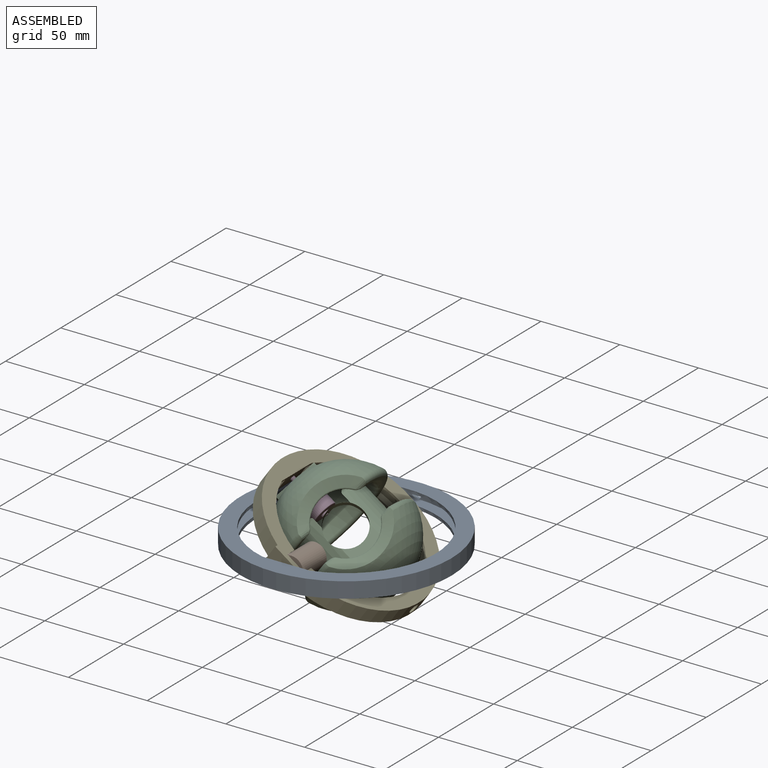
[diagram: assembled view]
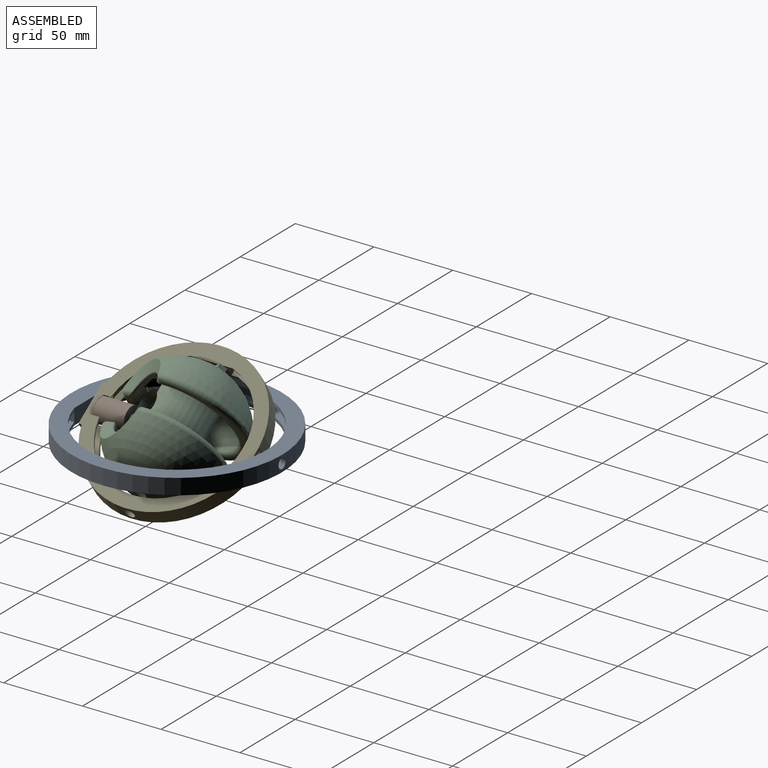
[diagram: assembled view, second angle]
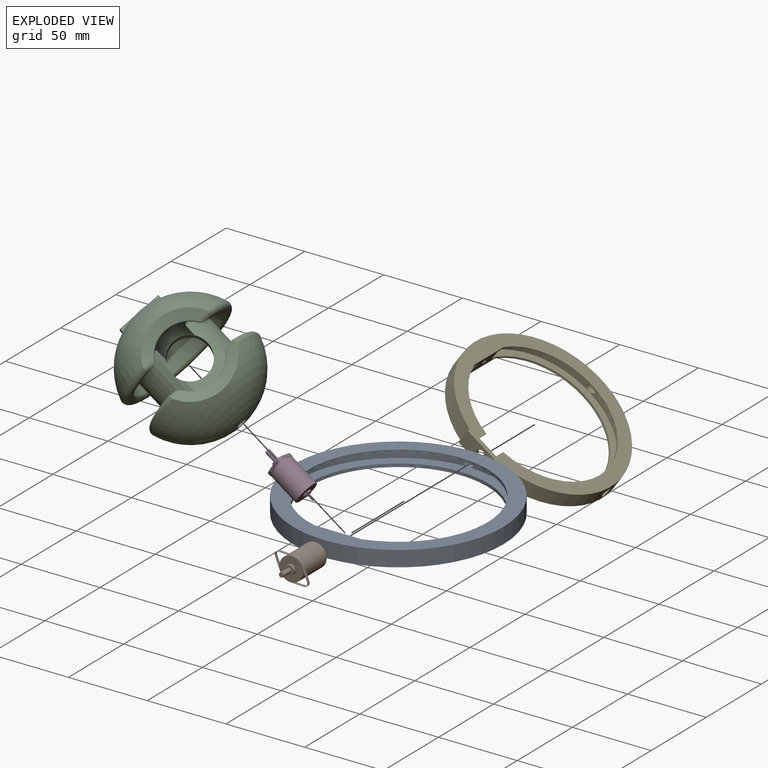
[diagram: exploded view]
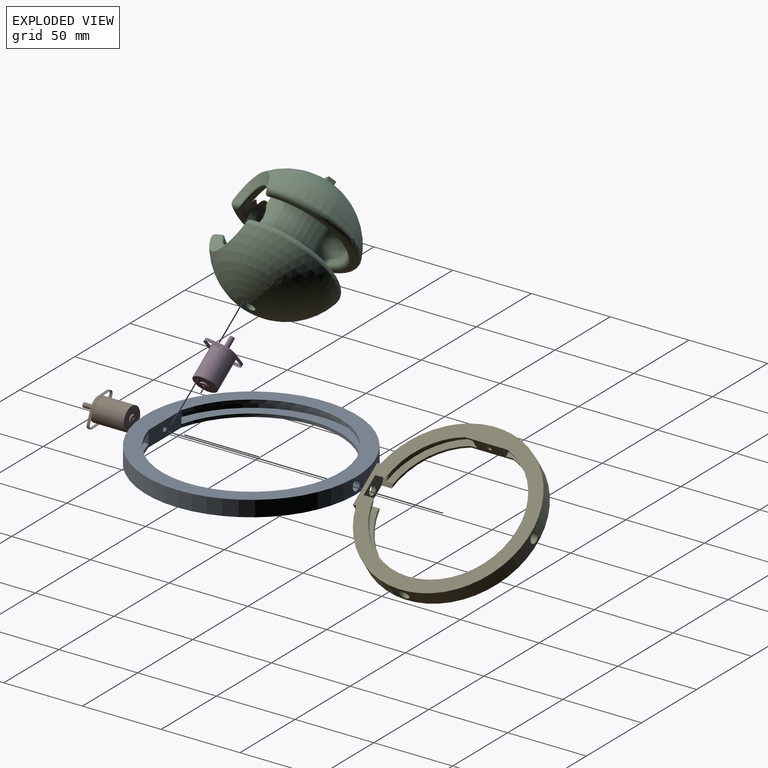
[diagram: exploded view, second angle]
ASSEMBLY  parts=5 mates=4
PART A: 18 faces, bbox 133.6x133.6x10 mm
  f0: plane 29.8x10mm, normal (0,1,0), area 290.1mm2, adj f4,f6,f8,f9,f13,f14,f15,f16
  f1: cylinder r=63.8mm len=125.84mm, axis (0,0,1), area 1096.9mm2, adj f2,f3,f5,f13
  f2: plane 125.84x62.77mm, normal (0,0,1), area 1213.5mm2, adj f1,f4,f5,f13
  f3: plane 125.84x62.77mm, normal (0,0,-1), area 1213.5mm2, adj f1,f5,f6,f13
  f4: cylinder r=56.8mm len=113.61mm, axis (0,0,-1), area 653.3mm2, adj f0,f2,f5,f9,f11
  f5: cylinder r=3.17mm len=10.01mm, axis (0,-1,0), area 89.6mm2, adj f1,f2,f3,f4,f6,f7,f10,f11
  f6: cylinder r=56.8mm len=113.61mm, axis (0,0,-1), area 653.3mm2, adj f0,f3,f5,f8,f12
  f7: cylinder r=66.8mm len=133.61mm, axis (0,0,-1), area 4165.7mm2, adj f5,f8,f9
  f8: plane 133.61x133.61mm, normal (0,0,1), area 3922.9mm2, adj f0,f6,f7
  f9: plane 133.61x133.61mm, normal (0,0,-1), area 3922.9mm2, adj f0,f4,f7
  f10: cylinder r=63.8mm len=125.84mm, axis (0,0,1), area 1096.9mm2, adj f5,f11,f12,f14
  f11: plane 125.84x62.77mm, normal (0,0,1), area 1213.5mm2, adj f4,f5,f10,f14
  f12: plane 125.84x62.77mm, normal (0,0,-1), area 1213.5mm2, adj f5,f6,f10,f14
  f13: plane 7.22x6mm, normal (1,0,0), area 43.3mm2, adj f0,f1,f2,f3
  f14: plane 7.22x6mm, normal (-1,0,0), area 43.3mm2, adj f0,f10,f11,f12
  f15: plane 4.22x2.27mm, normal (0,0,-1), area 9.6mm2, adj f0,f16,f17
  f16: cylinder r=1.65mm len=4.22mm, axis (0,-1,0), area 33.2mm2, adj f0,f15,f17
  f17: plane 3.3x2.85mm, normal (0,1,0), area 7.9mm2, adj f15,f16
PART B: 26 faces, bbox 24.6x31.9x15.4 mm
  f0: cylinder r=0.96mm len=1.92mm, axis (0,-1,0), area 2.7mm2, adj f1,f10
  f1: plane 5.4x5.4mm, normal (0,1,0), area 20mm2, adj f0,f2
  f2: cylinder r=2.7mm len=5.4mm, axis (0,-1,0), area 17.9mm2, adj f1,f3
  f3: plane 15x15mm, normal (0,1,0), area 153.8mm2, adj f2,f4
  f4: cylinder r=7.5mm len=21.44mm, axis (0,-1,0), area 979.6mm2, adj f3,f5,f11,f13,f14,f24,f25
  f5: plane 24.6x15.4mm, normal (0,-1,0), area 161.3mm2, adj f4,f6,f11,f12,f13,f14,f15,f16
  f6: cylinder r=2.95mm len=5.9mm, axis (0,-1,0), area 37.1mm2, adj f5,f7
  f7: plane 5.9x5.9mm, normal (0,-1,0), area 20.3mm2, adj f6,f8
  f8: cylinder r=1.5mm len=7mm, axis (0,-1,0), area 66mm2, adj f7,f9
  f9: plane 3x3mm, normal (0,-1,0), area 7.1mm2, adj f8
  f10: plane 1.92x1.92mm, normal (0,1,0), area 2.9mm2, adj f0
  f11: plane 7.08x4.55mm, normal (0.54,0,0.84), area 15.1mm2, adj f4,f5,f12,f25
  f12: cylinder r=2.1mm len=3.54mm, axis (0,-1,0), area 7.6mm2, adj f5,f11,f13,f25
  f13: plane 7.08x4.55mm, normal (0.54,0,-0.84), area 15.1mm2, adj f4,f5,f12,f25
  f14: plane 7.08x4.55mm, normal (-0.54,0,-0.84), area 15.1mm2, adj f4,f5,f15,f25
  f15: cylinder r=2.1mm len=3.54mm, axis (0,-1,0), area 7.6mm2, adj f5,f14,f24,f25
  f16: cylinder r=2.3mm len=3.87mm, axis (0,-1,0), area 8.3mm2, adj f5,f17,f23,f25
  f17: plane 7.08x4.55mm, normal (-0.54,0,-0.84), area 15.1mm2, adj f5,f16,f18,f25
  f18: cylinder r=7.7mm len=8.32mm, axis (0,-1,0), area 15.8mm2, adj f5,f17,f19,f25
  f19: plane 7.08x4.55mm, normal (0.54,0,-0.84), area 15.1mm2, adj f5,f18,f20,f25
  f20: cylinder r=2.3mm len=3.87mm, axis (0,-1,0), area 8.3mm2, adj f5,f19,f21,f25
  f21: plane 7.08x4.55mm, normal (0.54,0,0.84), area 15.1mm2, adj f5,f20,f22,f25
  f22: cylinder r=7.7mm len=8.32mm, axis (0,-1,0), area 15.8mm2, adj f5,f21,f23,f25
  f23: plane 7.08x4.55mm, normal (-0.54,0,0.84), area 15.1mm2, adj f5,f16,f22,f25
  f24: plane 7.08x4.55mm, normal (-0.54,0,0.84), area 15.1mm2, adj f4,f5,f15,f25
  f25: plane 24.6x15.4mm, normal (0,1,0), area 12mm2, adj f4,f11,f12,f13,f14,f15,f16,f17
PART C: 86 faces, bbox 80.7x83.4x80.1 mm
  f0: cylinder r=40mm len=22.81mm, axis (0,0,-1), area 119.5mm2, adj f15,f16,f18,f19,f85
  f1: plane 22.81x8.64mm, normal (0,0,-1), area 1.9mm2, adj f13,f14,f17,f85
  f2: plane 22.81x8.64mm, normal (0,0,1), area 1.9mm2, adj f13,f14,f20,f85
  f3: plane 35.59x16.3mm, normal (0,0,-1), area 263.6mm2, adj f6,f49,f52,f54,f55,f57
  f4: plane 20.16x20mm, normal (0,0,1), area 321mm2, adj f6,f50,f53,f54
  f5: plane 51.63x1.48mm, normal (0,1,0), area 74.5mm2, adj f6,f7,f48,f50
  f6: sphere r=32.5mm, area 3112.4mm2, adj f3,f4,f5,f11,f48,f50,f51,f53
  f7: sphere r=32.5mm, area 2892.1mm2, adj f5,f11,f34,f35,f36,f37,f38,f39
  f8: plane 11.93x5mm, normal (-1,0,0), area 54.8mm2, adj f9,f10,f24,f43
  f9: plane 23.2x8.69mm, normal (0,0,1), area 12.4mm2, adj f8,f21,f23,f24,f27,f43
  f10: plane 23.2x8.69mm, normal (0,0,-1), area 12.4mm2, adj f8,f21,f23,f24,f32,f43
  f11: plane 51.63x1.48mm, normal (0,-1,0), area 74.5mm2, adj f6,f7,f51,f53
  f12: plane 70.37x62.6mm, normal (-1,0,0), area 269.3mm2, adj f71,f72,f73,f76
  f13: sphere r=40mm, area 6194.8mm2, adj f1,f2,f15,f16,f17,f18,f19,f20
  f14: cylinder r=40mm len=22.81mm, axis (0,0,-1), area 119.5mm2, adj f1,f2,f17,f20,f85
  f15: plane 22.81x8.64mm, normal (0,0,-1), area 1.9mm2, adj f0,f13,f16,f85
  f16: plane 2.58x0.18mm, normal (0,1,0), area 0.1mm2, adj f0,f13,f15
  f17: plane 2.58x0.18mm, normal (0,-1,0), area 0.1mm2, adj f1,f13,f14
  f18: plane 22.81x8.64mm, normal (0,0,1), area 1.9mm2, adj f0,f13,f19,f85
  f19: plane 2.58x0.18mm, normal (0,1,0), area 0.1mm2, adj f0,f13,f18
  f20: plane 2.58x0.18mm, normal (0,-1,0), area 0.1mm2, adj f2,f13,f14
  f21: sphere r=40mm, area 6196.6mm2, adj f9,f10,f26,f27,f28,f31,f32,f33
  f22: plane 70.37x62.6mm, normal (1,0,0), area 269.3mm2, adj f79,f80,f83,f84
  f23: cylinder r=40mm len=11.26mm, axis (0,0,-1), area 64.7mm2, adj f9,f10,f24,f27,f32
  f24: plane 5x2.35mm, normal (0,1,0), area 11.7mm2, adj f8,f9,f10,f23
  f25: plane 11.93x5mm, normal (-1,0,0), area 54.8mm2, adj f26,f29,f31,f43
  f26: plane 23.2x8.69mm, normal (0,0,1), area 12.4mm2, adj f21,f25,f28,f29,f30,f43
  f27: plane 2.5x0.1mm, normal (0,1,0), area 0.1mm2, adj f9,f21,f23
  f28: plane 2.58x0.18mm, normal (0,-1,0), area 0.1mm2, adj f21,f26,f30
  f29: plane 5x2.35mm, normal (0,-1,0), area 11.7mm2, adj f25,f26,f30,f31
  f30: cylinder r=40mm len=11.26mm, axis (0,0,-1), area 64.7mm2, adj f26,f28,f29,f31,f33
  f31: plane 23.2x8.69mm, normal (0,0,-1), area 12.4mm2, adj f21,f25,f29,f30,f33,f43
  f32: plane 2.5x0.1mm, normal (0,1,0), area 0.1mm2, adj f10,f21,f23
  f33: plane 2.58x0.18mm, normal (0,-1,0), area 0.1mm2, adj f21,f30,f31
  f34: plane 7.57x7.08mm, normal (0,0.54,0.84), area 57.3mm2, adj f7,f35,f41,f42
  f35: cylinder r=2.3mm len=7.57mm, axis (-1,0,0), area 34.8mm2, adj f7,f34,f36,f42
  f36: plane 7.57x7.08mm, normal (0,0.54,-0.84), area 57.3mm2, adj f7,f35,f37,f42
  f37: cylinder r=7.7mm len=8.32mm, axis (-1,0,0), area 56.4mm2, adj f7,f36,f38,f42
  f38: plane 7.57x7.08mm, normal (0,-0.54,-0.84), area 57.3mm2, adj f7,f37,f39,f42
  f39: cylinder r=2.3mm len=7.57mm, axis (-1,0,0), area 34.8mm2, adj f7,f38,f40,f42
  f40: plane 7.57x7.08mm, normal (0,-0.54,0.84), area 57.3mm2, adj f7,f39,f41,f42
  f41: cylinder r=7.7mm len=8.32mm, axis (-1,0,0), area 56.4mm2, adj f7,f34,f40,f42
  f42: plane 24.6x15.4mm, normal (1,0,0), area 219.2mm2, adj f34,f35,f36,f37,f38,f39,f40,f41
  f43: cylinder r=2.95mm len=5.9mm, axis (-1,0,0), area 36.4mm2, adj f8,f9,f10,f21,f25,f26,f31,f42
  f44: cone r=25.33mm half-angle=64.6deg, axis (0,0,-1), area 318.7mm2, adj f13,f60,f71,f73,f76
  f45: cone r=25.33mm half-angle=64.6deg, axis (0,0,-1), area 318.7mm2, adj f21,f59,f80,f83,f84
  f46: plane 35.59x16.3mm, normal (0,0,-1), area 263.6mm2, adj f7,f49,f52,f54,f56,f58
  f47: plane 20.16x20mm, normal (0,0,1), area 321mm2, adj f7,f50,f53,f54
  f48: cylinder r=19.78mm len=51.58mm, axis (1,0,0), area 170mm2, adj f5,f6,f7,f63
  f49: cylinder r=25.02mm len=29.19mm, axis (1,0,0), area 971mm2, adj f3,f46,f54,f57,f58,f62
  f50: cylinder r=19.78mm len=51.58mm, axis (1,0,0), area 993.5mm2, adj f4,f5,f6,f7,f47,f54
  f51: cylinder r=19.78mm len=51.58mm, axis (-1,0,0), area 170mm2, adj f6,f7,f11,f66
  f52: cylinder r=25.02mm len=29.19mm, axis (-1,0,0), area 971mm2, adj f3,f46,f54,f55,f56,f67
  f53: cylinder r=19.78mm len=51.58mm, axis (-1,0,0), area 993.5mm2, adj f4,f6,f7,f11,f47,f54
  f54: cylinder r=12.5mm len=25mm, axis (0,0,1), area 461.4mm2, adj f3,f4,f46,f47,f49,f50,f52,f53
  f55: torus R=27.02mm, axis (-1,0,0), area 175.6mm2, adj f3,f6,f52,f68
  f56: torus R=27.02mm, axis (1,0,0), area 175.6mm2, adj f7,f46,f52,f65
  f57: torus R=27.02mm, axis (-1,0,0), area 175.6mm2, adj f3,f6,f49,f64
  f58: torus R=27.02mm, axis (1,0,0), area 175.6mm2, adj f7,f46,f49,f61
  f59: torus R=19.63mm, axis (0,0,1), area 76.3mm2, adj f7,f45,f78,f81
  f60: torus R=19.63mm, axis (0,0,1), area 76.3mm2, adj f6,f44,f69,f75
  f61: bspline ~13.75x7.96mm, area 37.2mm2, adj f7,f58,f62,f63
  f62: cylinder r=5mm len=28.29mm, axis (1,0,0), area 114.4mm2, adj f49,f61,f63,f64
  f63: cylinder r=5mm len=51.58mm, axis (1,0,0), area 311.7mm2, adj f6,f7,f48,f61,f62,f64
  f64: bspline ~13.75x7.96mm, area 37.2mm2, adj f6,f57,f62,f63
  f65: bspline ~13.75x7.96mm, area 37.2mm2, adj f7,f56,f66,f67
  f66: cylinder r=5mm len=51.58mm, axis (-1,0,0), area 311.7mm2, adj f6,f7,f51,f65,f67,f68
  f67: cylinder r=5mm len=28.29mm, axis (-1,0,0), area 114.4mm2, adj f52,f65,f66,f68
  f68: bspline ~13.75x7.96mm, area 37.2mm2, adj f6,f55,f66,f67
  f69: bspline ~2.26x2.13mm, area 0.5mm2, adj f6,f60,f70,f71
  f70: bspline ~5.92x2.33mm, area 3.7mm2, adj f69,f71,f72
  f71: bspline ~11.32x6.94mm, area 20.1mm2, adj f12,f44,f69,f70,f73
  f72: torus R=33.61mm, axis (-1,0,0), area 606.1mm2, adj f6,f12,f70,f74
  f73: torus R=35.19mm, axis (-1,0,0), area 1051.9mm2, adj f12,f13,f44,f71,f76
  f74: bspline ~5.92x2.33mm, area 3.7mm2, adj f72,f75,f76
  f75: bspline ~2.26x2.13mm, area 0.5mm2, adj f6,f60,f74,f76
  f76: bspline ~11.32x6.94mm, area 20.1mm2, adj f12,f44,f73,f74,f75
  f77: bspline ~5.92x2.33mm, area 3.7mm2, adj f78,f79,f80
  f78: bspline ~2.26x2.13mm, area 0.5mm2, adj f7,f59,f77,f80
  f79: torus R=33.61mm, axis (-1,0,0), area 606.1mm2, adj f7,f22,f77,f82
  f80: bspline ~11.32x6.94mm, area 20.1mm2, adj f22,f45,f77,f78,f83
  f81: bspline ~2.26x2.13mm, area 0.5mm2, adj f7,f59,f82,f84
  f82: bspline ~5.92x2.33mm, area 3.7mm2, adj f79,f81,f84
  f83: torus R=35.19mm, axis (-1,0,0), area 1051.9mm2, adj f21,f22,f45,f80,f84
  f84: bspline ~11.32x6.94mm, area 20.1mm2, adj f22,f45,f81,f82,f83
  f85: cylinder r=3.17mm len=7.61mm, axis (1,0,0), area 150.5mm2, adj f0,f1,f2,f6,f13,f14,f15,f18
PART D: 27 faces, bbox 31.9x24.6x16.2 mm
  f0: cylinder r=1.5mm len=7mm, axis (-1,0,0), area 66mm2, adj f1,f10
  f1: plane 3x3mm, normal (-1,0,0), area 7.1mm2, adj f0
  f2: plane 1.92x1.92mm, normal (1,0,0), area 2.9mm2, adj f3
  f3: cylinder r=0.96mm len=1.92mm, axis (-1,0,0), area 2.7mm2, adj f2,f4
  f4: plane 5.4x5.4mm, normal (1,0,0), area 20mm2, adj f3,f5
  f5: cylinder r=2.7mm len=5.4mm, axis (-1,0,0), area 17.9mm2, adj f4,f6
  f6: plane 14.2x14.2mm, normal (1,0,0), area 135.5mm2, adj f5,f26
  f7: cylinder r=7.5mm len=21.05mm, axis (-1,0,0), area 960.9mm2, adj f8,f11,f13,f14,f24,f25,f26
  f8: plane 24.6x15.4mm, normal (-1,0,0), area 161.3mm2, adj f7,f9,f11,f12,f13,f14,f15,f16
  f9: cylinder r=2.95mm len=5.9mm, axis (-1,0,0), area 37.1mm2, adj f8,f10
  f10: plane 5.9x5.9mm, normal (-1,0,0), area 20.3mm2, adj f0,f9
  f11: plane 7.08x4.55mm, normal (0,-0.54,0.84), area 15.1mm2, adj f7,f8,f12,f25
  f12: cylinder r=2.1mm len=3.54mm, axis (-1,0,0), area 7.6mm2, adj f8,f11,f13,f25
  f13: plane 7.08x4.55mm, normal (0,-0.54,-0.84), area 15.1mm2, adj f7,f8,f12,f25
  f14: plane 7.08x4.55mm, normal (0,0.54,-0.84), area 15.1mm2, adj f7,f8,f15,f25
  f15: cylinder r=2.1mm len=3.54mm, axis (-1,0,0), area 7.6mm2, adj f8,f14,f24,f25
  f16: plane 7.08x4.55mm, normal (0,-0.54,-0.84), area 15.1mm2, adj f8,f17,f23,f25
  f17: cylinder r=2.3mm len=3.87mm, axis (-1,0,0), area 8.3mm2, adj f8,f16,f18,f25
  f18: plane 7.08x4.55mm, normal (0,-0.54,0.84), area 15.1mm2, adj f8,f17,f19,f25
  f19: cylinder r=7.7mm len=8.32mm, axis (-1,0,0), area 15.8mm2, adj f8,f18,f20,f25
  f20: plane 7.08x4.55mm, normal (0,0.54,0.84), area 15.1mm2, adj f8,f19,f21,f25
  f21: cylinder r=2.3mm len=3.87mm, axis (-1,0,0), area 8.3mm2, adj f8,f20,f22,f25
  f22: plane 7.08x4.55mm, normal (0,0.54,-0.84), area 15.1mm2, adj f8,f21,f23,f25
  f23: cylinder r=7.7mm len=8.32mm, axis (-1,0,0), area 15.8mm2, adj f8,f16,f22,f25
  f24: plane 7.08x4.55mm, normal (0,0.54,0.84), area 15.1mm2, adj f7,f8,f15,f25
  f25: plane 24.6x15.4mm, normal (1,0,0), area 12mm2, adj f7,f11,f12,f13,f14,f15,f16,f17
  f26: torus R=7.1mm, axis (1,0,0), area 29mm2, adj f6,f7
PART E: 35 faces, bbox 105.2x105.4x10 mm
  f0: cylinder r=44.12mm len=35.53mm, axis (0,0,-1), area 71.9mm2, adj f4,f8,f12,f20
  f1: cylinder r=44.12mm len=87.76mm, axis (0,0,-1), area 669.9mm2, adj f3,f4,f8,f13,f15,f22,f24,f25
  f2: cylinder r=44.12mm len=35.53mm, axis (0,0,-1), area 71.9mm2, adj f3,f8,f16,f18
  f3: plane 105.4x105.16mm, normal (0,0,1), area 2552.6mm2, adj f1,f2,f5,f6,f7,f8,f9,f10
  f4: plane 105.4x105.16mm, normal (0,0,-1), area 2552.6mm2, adj f0,f1,f5,f6,f7,f8,f9,f10
  f5: plane 10x2mm, normal (-1,0,0), area 20mm2, adj f3,f4,f6,f9
  f6: plane 27x10mm, normal (0,-1,0), area 242.7mm2, adj f3,f4,f5,f7,f17
  f7: plane 10x2mm, normal (1,0,0), area 20mm2, adj f3,f4,f6,f9
  f8: plane 27x10mm, normal (1,0,0), area 202.8mm2, adj f0,f1,f2,f3,f4,f18,f20,f21
  f9: cylinder r=52.58mm len=105.16mm, axis (0,0,-1), area 2967.1mm2, adj f3,f4,f5,f7,f33,f34
  f10: plane 24.6x10mm, normal (0,1,0), area 174mm2, adj f3,f4,f11,f12,f13,f14,f15,f16
  f11: cylinder r=2.3mm len=3.87mm, axis (0,-1,0), area 13.5mm2, adj f10,f12,f16,f19
  f12: plane 6.81x4.78mm, normal (0.54,0,0.84), area 25.6mm2, adj f0,f4,f10,f11,f19,f20
  f13: plane 6.81x4.78mm, normal (-0.54,0,0.84), area 25.6mm2, adj f1,f4,f10,f14,f23,f24
  f14: cylinder r=2.3mm len=3.87mm, axis (0,-1,0), area 13.5mm2, adj f10,f13,f15,f23
  f15: plane 6.81x4.78mm, normal (-0.54,0,-0.84), area 25.6mm2, adj f1,f3,f10,f14,f22,f23
  f16: plane 6.81x4.78mm, normal (0.54,0,-0.84), area 25.6mm2, adj f2,f3,f10,f11,f18,f19
  f17: cylinder r=2.95mm len=5.9mm, axis (0,-1,0), area 51.6mm2, adj f6,f10
  f18: plane 38.9x38.57mm, normal (0,0,-1), area 246.6mm2, adj f2,f8,f16,f19,f21
  f19: cylinder r=48.58mm len=38.9mm, axis (0,0,1), area 390.9mm2, adj f11,f12,f16,f18,f20,f21
  f20: plane 38.9x38.57mm, normal (0,0,1), area 246.6mm2, adj f0,f8,f12,f19,f21
  f21: plane 7x5.7mm, normal (0,-1,0), area 39.9mm2, adj f8,f18,f19,f20
  f22: plane 38.72x37.71mm, normal (0,0,-1), area 240.1mm2, adj f1,f15,f23,f25
  f23: cylinder r=48.58mm len=38.72mm, axis (0,0,1), area 384.7mm2, adj f13,f14,f15,f22,f24,f25
  f24: plane 38.72x37.71mm, normal (0,0,1), area 240.1mm2, adj f1,f13,f23,f25
  f25: plane 7x4.57mm, normal (0,-1,0), area 32mm2, adj f1,f22,f23,f24
  f26: plane 95.22x39.38mm, normal (0,0,1), area 565.8mm2, adj f1,f8,f28,f29,f30
  f27: plane 95.22x39.38mm, normal (0,0,-1), area 565.8mm2, adj f1,f8,f28,f29,f30
  f28: plane 7x4.57mm, normal (0,1,0), area 32mm2, adj f1,f26,f27,f29
  f29: cylinder r=48.58mm len=95.22mm, axis (0,0,1), area 900.8mm2, adj f26,f27,f28,f30,f34
  f30: plane 7x5.7mm, normal (0,1,0), area 39.9mm2, adj f8,f26,f27,f29
  f31: cylinder r=1.5mm len=5mm, axis (-1,0,0), area 47.1mm2, adj f8,f32
  f32: plane 3x3mm, normal (1,0,0), area 7.1mm2, adj f31
  f33: cylinder r=3.17mm len=8.58mm, axis (1,0,0), area 169mm2, adj f1,f9
  f34: cylinder r=3.17mm len=6.35mm, axis (0,-1,0), area 79.9mm2, adj f9,f29
PLACE A at identity fixed
PLACE B rot(axis=(0,1,0),35.2deg) t=(3.92,0,12.37)mm
PLACE C rot(axis=(-0.95,0.11,0.3),141.3deg) t=(3.92,0,12.37)mm
PLACE D rot(axis=(-0.8,0.55,0.25),60deg) t=(3.92,0,12.37)mm
PLACE E rot(axis=(0,1,0),35.2deg) t=(3.92,0,12.37)mm
MATE fastened D.f19 <-> C.f43  axis (-0.82,0,0.58) through (-9.59,0,21.89)mm
MATE fastened E.f17 <-> B.f18  axis (0,1,0) through (21.47,-50.03,0)mm
MATE revolute D.f0 <-> E.f33  axis (-0.82,0,0.58) through (-16.95,0,27.07)mm
MATE revolute B.f0 <-> A.f16  axis (0,-1,0) through (21.47,-59.03,0)mm
